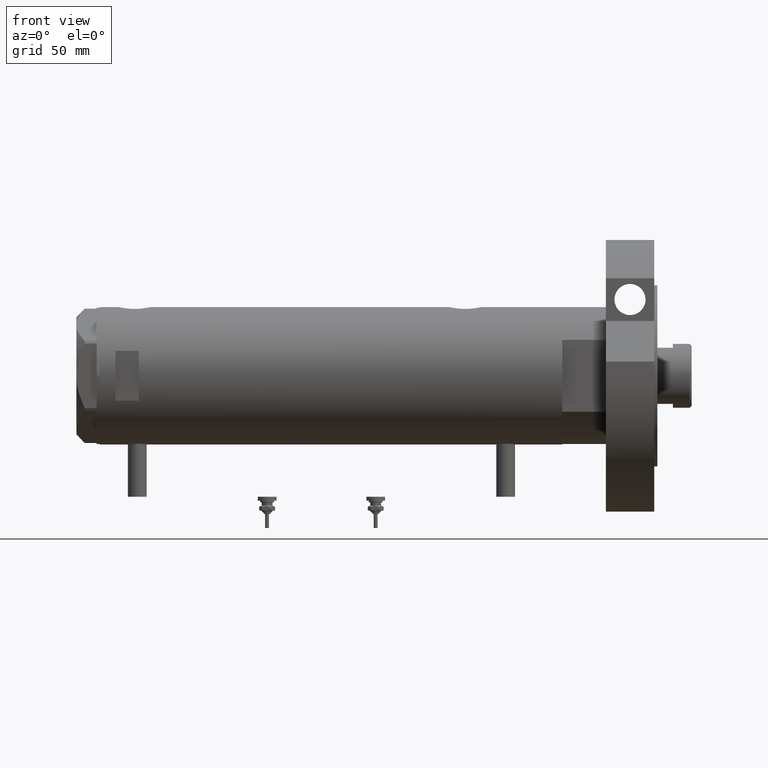
[diagram: clean part render]
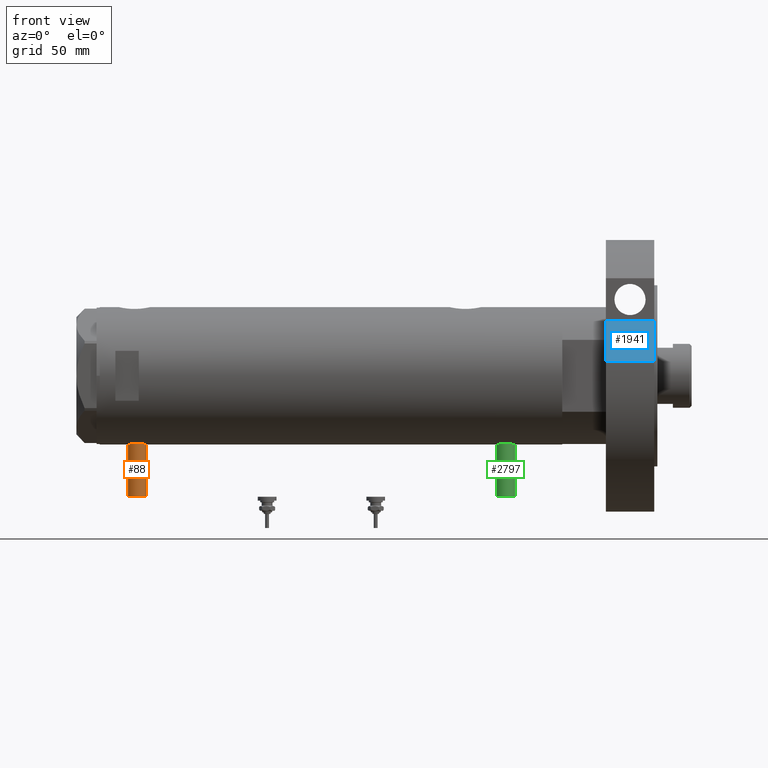
[diagram: same view with three faces highlighted in distinct colors, each labeled with its STEP entity id]
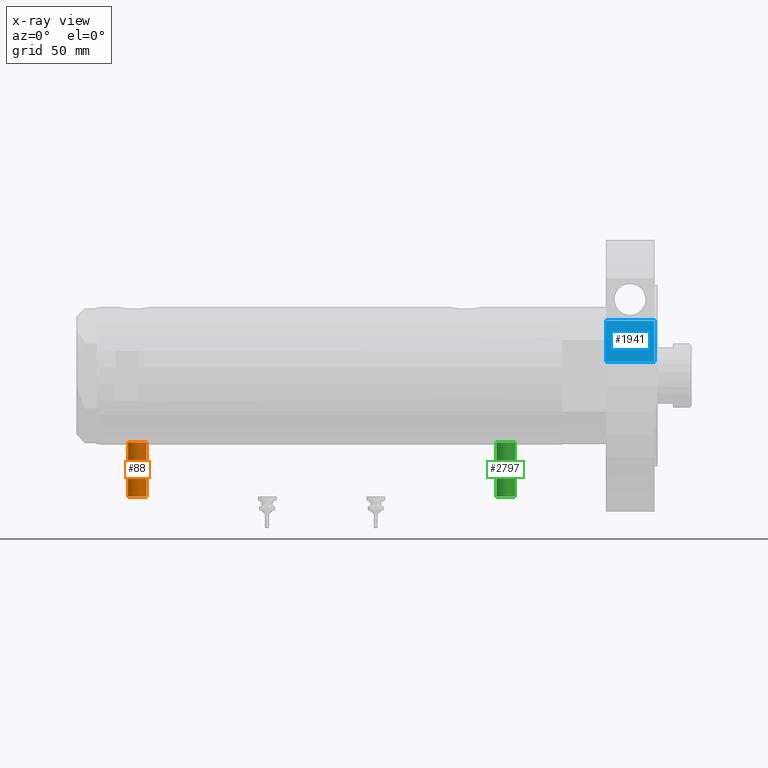
[diagram: x-ray of the same camera — body ghosted, the three highlighted faces saturated]
A machine part, front view with three faces highlighted in distinct colors.
The next image is the same camera in x-ray (body ghosted, the three faces saturated) — at least one of them is partly hidden behind the body in this view.
Their STEP definitions:

[orange] entity #88 — the highlighted cylindrical surface (edge-blend (fillet) strip) has radius 6 mm, axis along (0, 0, 1).
#88 = ADVANCED_FACE ( 'NONE', ( #5963 ), #6117, .T. ) ;
#168 = DIRECTION ( 'NONE',  ( -1.000000000000000000, 0.000000000000000000, 0.000000000000000000 ) ) ;
#249 = CARTESIAN_POINT ( 'NONE',  ( -77.50000000000000000, 0.000000000000000000, 124.2000000000000028 ) ) ;
#265 = VERTEX_POINT ( 'NONE', #2940 ) ;
#364 = CARTESIAN_POINT ( 'NONE',  ( -77.50000000000000000, 7.347880794884138472E-16, 130.2000000000000171 ) ) ;
#396 = LINE ( 'NONE', #364, #2407 ) ;
#611 = ORIENTED_EDGE ( 'NONE', *, *, #3915, .T. ) ;
#640 = AXIS2_PLACEMENT_3D ( 'NONE', #4239, #168, #5965 ) ;
#1051 = ORIENTED_EDGE ( 'NONE', *, *, #3589, .F. ) ;
#1341 = DIRECTION ( 'NONE',  ( 0.000000000000000000, 0.000000000000000000, -1.000000000000000000 ) ) ;
#2407 = VECTOR ( 'NONE', #4930, 1000.000000000000000 ) ;
#2629 = CARTESIAN_POINT ( 'NONE',  ( -42.79999999999999716, 0.000000000000000000, 124.2000000000000028 ) ) ;
#2649 = AXIS2_PLACEMENT_3D ( 'NONE', #2629, #4372, #6712 ) ;
#2664 = CIRCLE ( 'NONE', #2649, 6.000000000000005329 ) ;
#2940 = CARTESIAN_POINT ( 'NONE',  ( -77.50000000000000000, 7.347880794884152277E-16, 130.2000000000000171 ) ) ;
#2946 = CIRCLE ( 'NONE', #640, 6.000000000000005329 ) ;
#3589 = EDGE_CURVE ( 'NONE', #265, #5684, #396, .T. ) ;
#3640 = LINE ( 'NONE', #4215, #5942 ) ;
#3658 = DIRECTION ( 'NONE',  ( 1.000000000000000000, -0.000000000000000000, -0.000000000000000000 ) ) ;
#3675 = EDGE_CURVE ( 'NONE', #6179, #4195, #3640, .T. ) ;
#3915 = EDGE_CURVE ( 'NONE', #4195, #5684, #2664, .T. ) ;
#4195 = VERTEX_POINT ( 'NONE', #7015 ) ;
#4215 = CARTESIAN_POINT ( 'NONE',  ( -77.50000000000000000, 0.000000000000000000, 118.1999999999999886 ) ) ;
#4239 = CARTESIAN_POINT ( 'NONE',  ( -77.50000000000000000, 0.000000000000000000, 124.2000000000000028 ) ) ;
#4372 = DIRECTION ( 'NONE',  ( -1.000000000000000000, 0.000000000000000000, 0.000000000000000000 ) ) ;
#4521 = ORIENTED_EDGE ( 'NONE', *, *, #3675, .T. ) ;
#4574 = DIRECTION ( 'NONE',  ( 1.000000000000000000, -0.000000000000000000, -0.000000000000000000 ) ) ;
#4765 = CARTESIAN_POINT ( 'NONE',  ( -42.79999999999999716, 7.347880794884152277E-16, 130.2000000000000171 ) ) ;
#4930 = DIRECTION ( 'NONE',  ( 1.000000000000000000, -0.000000000000000000, -0.000000000000000000 ) ) ;
#5071 = EDGE_LOOP ( 'NONE', ( #1051, #6291, #4521, #611 ) ) ;
#5250 = EDGE_CURVE ( 'NONE', #6179, #265, #2946, .T. ) ;
#5684 = VERTEX_POINT ( 'NONE', #4765 ) ;
#5942 = VECTOR ( 'NONE', #4574, 1000.000000000000000 ) ;
#5963 = FACE_OUTER_BOUND ( 'NONE', #5071, .T. ) ;
#5965 = DIRECTION ( 'NONE',  ( 0.000000000000000000, 0.000000000000000000, 1.000000000000000000 ) ) ;
#6117 = CYLINDRICAL_SURFACE ( 'NONE', #7371, 6.000000000000019540 ) ;
#6179 = VERTEX_POINT ( 'NONE', #6558 ) ;
#6291 = ORIENTED_EDGE ( 'NONE', *, *, #5250, .F. ) ;
#6558 = CARTESIAN_POINT ( 'NONE',  ( -77.50000000000000000, 0.000000000000000000, 118.1999999999999886 ) ) ;
#6712 = DIRECTION ( 'NONE',  ( 0.000000000000000000, 0.000000000000000000, 1.000000000000000000 ) ) ;
#7015 = CARTESIAN_POINT ( 'NONE',  ( -42.79999999999999716, 0.000000000000000000, 118.1999999999999886 ) ) ;
#7371 = AXIS2_PLACEMENT_3D ( 'NONE', #249, #3658, #1341 ) ;

[blue] entity #1941 — the highlighted planar face has unit normal (-0, 0.7071, -0.7071).
#5 = ORIENTED_EDGE ( 'NONE', *, *, #4182, .F. ) ;
#257 = VERTEX_POINT ( 'NONE', #6458 ) ;
#715 = DIRECTION ( 'NONE',  ( -0.000000000000000000, -0.000000000000000000, 1.000000000000000000 ) ) ;
#807 = VERTEX_POINT ( 'NONE', #4641 ) ;
#1251 = DIRECTION ( 'NONE',  ( -0.7071067811865440200, -0.7071067811865511255, 0.000000000000000000 ) ) ;
#1304 = EDGE_CURVE ( 'NONE', #3261, #807, #6012, .T. ) ;
#1441 = VECTOR ( 'NONE', #2881, 999.9999999999998863 ) ;
#1644 = DIRECTION ( 'NONE',  ( -0.000000000000000000, -0.000000000000000000, 1.000000000000000000 ) ) ;
#1657 = AXIS2_PLACEMENT_3D ( 'NONE', #1909, #1251, #4686 ) ;
#1813 = EDGE_CURVE ( 'NONE', #3987, #257, #4863, .T. ) ;
#1907 = VECTOR ( 'NONE', #6866, 999.9999999999998863 ) ;
#1909 = CARTESIAN_POINT ( 'NONE',  ( 35.23236590573035443, 60.47687547247904405, 0.000000000000000000 ) ) ;
#1941 = ADVANCED_FACE ( 'NONE', ( #5227 ), #7144, .F. ) ;
#2150 = EDGE_CURVE ( 'NONE', #807, #257, #3875, .T. ) ;
#2456 = LINE ( 'NONE', #4708, #1441 ) ;
#2881 = DIRECTION ( 'NONE',  ( 0.7071067811865511255, -0.7071067811865440200, -0.000000000000000000 ) ) ;
#3106 = VECTOR ( 'NONE', #1644, 1000.000000000000000 ) ;
#3146 = CARTESIAN_POINT ( 'NONE',  ( 9.196694222441541555, 86.51254715576759224, 0.000000000000000000 ) ) ;
#3261 = VERTEX_POINT ( 'NONE', #6380 ) ;
#3768 = ORIENTED_EDGE ( 'NONE', *, *, #1304, .T. ) ;
#3875 = LINE ( 'NONE', #6287, #1907 ) ;
#3987 = VERTEX_POINT ( 'NONE', #6938 ) ;
#4182 = EDGE_CURVE ( 'NONE', #3261, #3987, #2456, .T. ) ;
#4641 = CARTESIAN_POINT ( 'NONE',  ( 9.196694222441541555, 86.51254715576759224, 31.00000000000000000 ) ) ;
#4686 = DIRECTION ( 'NONE',  ( 0.7071067811865511255, -0.7071067811865440200, 0.000000000000000000 ) ) ;
#4708 = CARTESIAN_POINT ( 'NONE',  ( 35.23236590573035443, 60.47687547247904405, 0.000000000000000000 ) ) ;
#4863 = LINE ( 'NONE', #7206, #3106 ) ;
#4874 = ORIENTED_EDGE ( 'NONE', *, *, #2150, .T. ) ;
#5227 = FACE_OUTER_BOUND ( 'NONE', #5609, .T. ) ;
#5609 = EDGE_LOOP ( 'NONE', ( #4874, #6908, #5, #3768 ) ) ;
#6012 = LINE ( 'NONE', #3146, #6521 ) ;
#6287 = CARTESIAN_POINT ( 'NONE',  ( 47.85462068910451450, 47.85462068910500477, 31.00000000000000000 ) ) ;
#6380 = CARTESIAN_POINT ( 'NONE',  ( 9.196694222441541555, 86.51254715576759224, 0.000000000000000000 ) ) ;
#6458 = CARTESIAN_POINT ( 'NONE',  ( 35.23236590573035443, 60.47687547247904405, 31.00000000000000000 ) ) ;
#6521 = VECTOR ( 'NONE', #715, 1000.000000000000000 ) ;
#6866 = DIRECTION ( 'NONE',  ( 0.7071067811865511255, -0.7071067811865440200, 0.000000000000000000 ) ) ;
#6908 = ORIENTED_EDGE ( 'NONE', *, *, #1813, .F. ) ;
#6938 = CARTESIAN_POINT ( 'NONE',  ( 35.23236590573035443, 60.47687547247904405, 0.000000000000000000 ) ) ;
#7144 = PLANE ( 'NONE',  #1657 ) ;
#7206 = CARTESIAN_POINT ( 'NONE',  ( 35.23236590573035443, 60.47687547247904405, 0.000000000000000000 ) ) ;

[green] entity #2797 — the highlighted cylindrical surface (edge-blend (fillet) strip) has radius 6 mm, axis along (0, 0, 1).
#99 = CARTESIAN_POINT ( 'NONE',  ( -77.50000000000000000, 0.000000000000000000, -117.9000000000000057 ) ) ;
#101 = DIRECTION ( 'NONE',  ( 1.000000000000000000, -0.000000000000000000, -0.000000000000000000 ) ) ;
#215 = AXIS2_PLACEMENT_3D ( 'NONE', #2915, #101, #1735 ) ;
#318 = CARTESIAN_POINT ( 'NONE',  ( -77.50000000000000000, 7.347880794884122694E-16, -105.8999999999999915 ) ) ;
#336 = VECTOR ( 'NONE', #6855, 1000.000000000000000 ) ;
#435 = CARTESIAN_POINT ( 'NONE',  ( -42.79999999999999716, 0.000000000000000000, -111.9000000000000057 ) ) ;
#492 = CARTESIAN_POINT ( 'NONE',  ( -77.50000000000000000, 0.000000000000000000, -111.9000000000000057 ) ) ;
#514 = FACE_OUTER_BOUND ( 'NONE', #6034, .T. ) ;
#515 = LINE ( 'NONE', #2837, #336 ) ;
#954 = DIRECTION ( 'NONE',  ( 0.000000000000000000, 0.000000000000000000, 1.000000000000000000 ) ) ;
#1229 = VERTEX_POINT ( 'NONE', #5364 ) ;
#1247 = VECTOR ( 'NONE', #2097, 1000.000000000000000 ) ;
#1461 = DIRECTION ( 'NONE',  ( 0.000000000000000000, 0.000000000000000000, 1.000000000000000000 ) ) ;
#1595 = DIRECTION ( 'NONE',  ( -1.000000000000000000, 0.000000000000000000, 0.000000000000000000 ) ) ;
#1735 = DIRECTION ( 'NONE',  ( 0.000000000000000000, 0.000000000000000000, -1.000000000000000000 ) ) ;
#2097 = DIRECTION ( 'NONE',  ( 1.000000000000000000, -0.000000000000000000, -0.000000000000000000 ) ) ;
#2317 = ORIENTED_EDGE ( 'NONE', *, *, #3596, .T. ) ;
#2615 = AXIS2_PLACEMENT_3D ( 'NONE', #492, #1595, #954 ) ;
#2653 = CARTESIAN_POINT ( 'NONE',  ( -42.79999999999999716, 7.347880794884119736E-16, -105.8999999999999915 ) ) ;
#2754 = DIRECTION ( 'NONE',  ( -1.000000000000000000, 0.000000000000000000, 0.000000000000000000 ) ) ;
#2797 = ADVANCED_FACE ( 'NONE', ( #514 ), #5778, .T. ) ;
#2837 = CARTESIAN_POINT ( 'NONE',  ( -77.50000000000000000, 0.000000000000000000, -117.9000000000000057 ) ) ;
#2915 = CARTESIAN_POINT ( 'NONE',  ( -77.50000000000000000, 0.000000000000000000, -111.9000000000000057 ) ) ;
#3113 = ORIENTED_EDGE ( 'NONE', *, *, #5735, .F. ) ;
#3596 = EDGE_CURVE ( 'NONE', #5719, #5344, #4354, .T. ) ;
#3961 = EDGE_CURVE ( 'NONE', #5179, #5719, #515, .T. ) ;
#4354 = CIRCLE ( 'NONE', #4472, 6.000000000000005329 ) ;
#4383 = LINE ( 'NONE', #318, #1247 ) ;
#4472 = AXIS2_PLACEMENT_3D ( 'NONE', #435, #2754, #1461 ) ;
#4613 = ORIENTED_EDGE ( 'NONE', *, *, #3961, .T. ) ;
#5179 = VERTEX_POINT ( 'NONE', #99 ) ;
#5344 = VERTEX_POINT ( 'NONE', #2653 ) ;
#5364 = CARTESIAN_POINT ( 'NONE',  ( -77.50000000000000000, 7.347880794884119736E-16, -105.8999999999999915 ) ) ;
#5444 = ORIENTED_EDGE ( 'NONE', *, *, #7204, .F. ) ;
#5719 = VERTEX_POINT ( 'NONE', #6569 ) ;
#5735 = EDGE_CURVE ( 'NONE', #1229, #5344, #4383, .T. ) ;
#5778 = CYLINDRICAL_SURFACE ( 'NONE', #215, 6.000000000000005329 ) ;
#6034 = EDGE_LOOP ( 'NONE', ( #3113, #5444, #4613, #2317 ) ) ;
#6569 = CARTESIAN_POINT ( 'NONE',  ( -42.79999999999999716, 0.000000000000000000, -117.9000000000000057 ) ) ;
#6855 = DIRECTION ( 'NONE',  ( 1.000000000000000000, -0.000000000000000000, -0.000000000000000000 ) ) ;
#7129 = CIRCLE ( 'NONE', #2615, 6.000000000000005329 ) ;
#7204 = EDGE_CURVE ( 'NONE', #5179, #1229, #7129, .T. ) ;